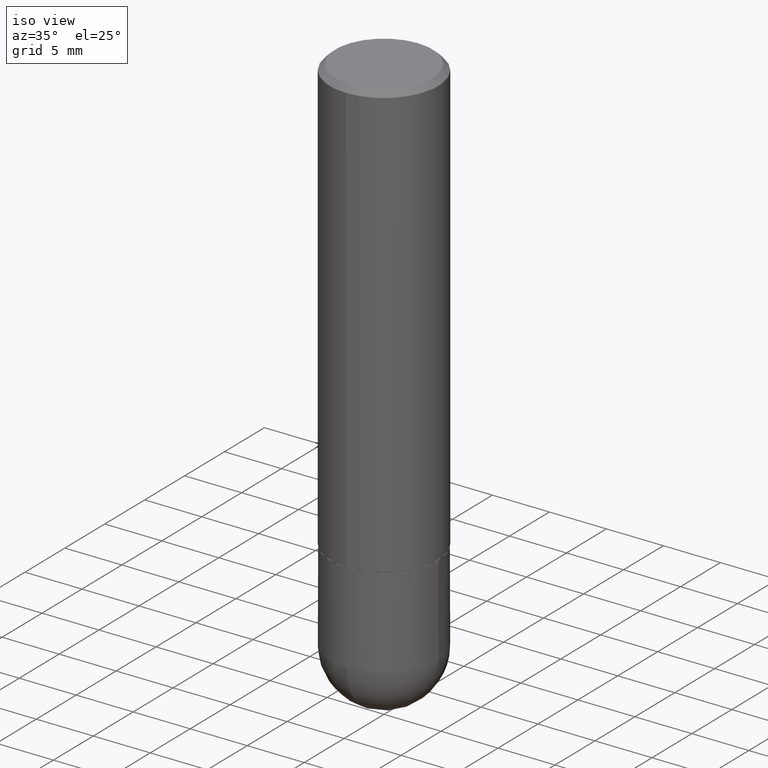
[diagram: clean part render]
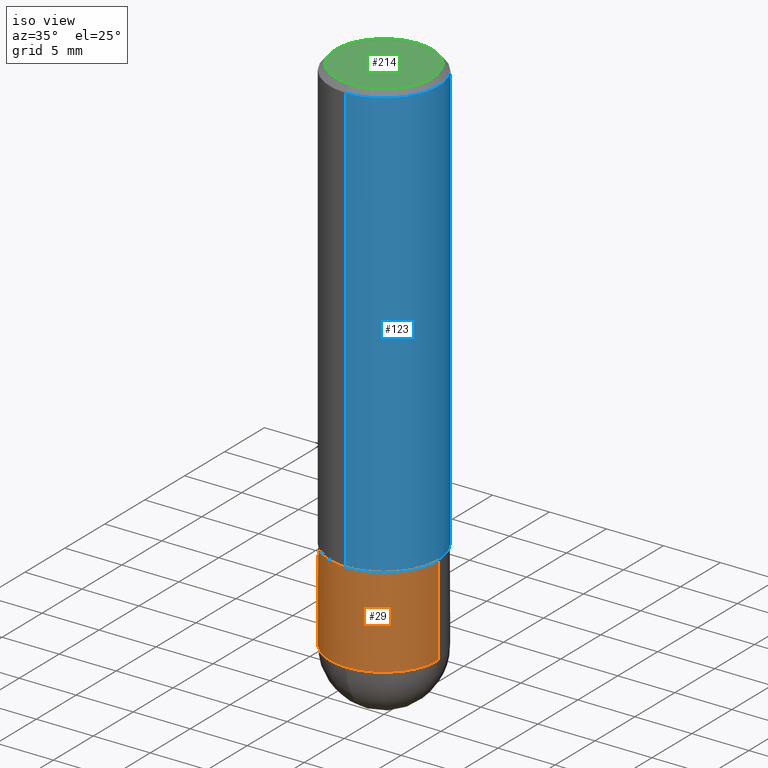
[diagram: same view with three faces highlighted in distinct colors, each labeled with its STEP entity id]
A machine part, iso view with three faces highlighted in distinct colors.
Their STEP definitions:

[orange] entity #29 — the highlighted cylindrical surface (partial cylindrical patch) has radius 4.7625 mm, axis along (-0, 0, 1).
#8 = LINE ( 'NONE', #157, #295 ) ;
#11 = EDGE_CURVE ( 'NONE', #330, #111, #65, .T. ) ;
#13 = EDGE_CURVE ( 'NONE', #411, #55, #158, .T. ) ;
#16 = DIRECTION ( 'NONE',  ( 1.000000000000000000, -6.982962677686266711E-15, 4.876176775795935793E-29 ) ) ;
#20 = ORIENTED_EDGE ( 'NONE', *, *, #13, .F. ) ;
#29 = ADVANCED_FACE ( 'NONE', ( #78 ), #174, .T. ) ;
#30 = CARTESIAN_POINT ( 'NONE',  ( 4.432412211210560082E-29, -6.328309926653201295E-15, -1.812499999999999778 ) ) ;
#35 = VECTOR ( 'NONE', #142, 39.37007874015748143 ) ;
#38 = AXIS2_PLACEMENT_3D ( 'NONE', #364, #369, #16 ) ;
#41 = EDGE_LOOP ( 'NONE', ( #297, #333, #328, #121, #20 ) ) ;
#49 = EDGE_CURVE ( 'NONE', #92, #55, #321, .T. ) ;
#55 = VERTEX_POINT ( 'NONE', #261 ) ;
#58 = CARTESIAN_POINT ( 'NONE',  ( 3.668203209277704335E-29, -5.237222008264717388E-15, -1.499999999999999778 ) ) ;
#65 = CIRCLE ( 'NONE', #245, 0.1874999999999999722 ) ;
#78 = FACE_OUTER_BOUND ( 'NONE', #41, .T. ) ;
#81 = CARTESIAN_POINT ( 'NONE',  ( 0.1874999999999999722, -7.092071469525134744E-15, -1.812499999999999778 ) ) ;
#92 = VERTEX_POINT ( 'NONE', #81 ) ;
#105 = CARTESIAN_POINT ( 'NONE',  ( -1.332267629550146039E-15, -0.1875000000000066613, -1.812499999999999334 ) ) ;
#107 = CARTESIAN_POINT ( 'NONE',  ( 4.432412211210560082E-29, -6.328309926653201295E-15, -1.812499999999999778 ) ) ;
#111 = VERTEX_POINT ( 'NONE', #105 ) ;
#121 = ORIENTED_EDGE ( 'NONE', *, *, #49, .T. ) ;
#142 = DIRECTION ( 'NONE',  ( -2.445468806185136877E-29, 3.491481338843145188E-15, 1.000000000000000000 ) ) ;
#157 = CARTESIAN_POINT ( 'NONE',  ( -0.1874999999999999722, 1.332267629550187651E-15, -9.223003294227946589E-30 ) ) ;
#158 = CIRCLE ( 'NONE', #251, 0.1875000000000000278 ) ;
#161 = DIRECTION ( 'NONE',  ( -2.445468806185136877E-29, 3.491481338843145188E-15, 1.000000000000000000 ) ) ;
#170 = DIRECTION ( 'NONE',  ( 1.000000000000000000, -6.982962677686263555E-15, 0.000000000000000000 ) ) ;
#174 = CYLINDRICAL_SURFACE ( 'NONE', #38, 0.1874999999999999722 ) ;
#177 = DIRECTION ( 'NONE',  ( -2.445468806185136597E-29, 3.491481338843145583E-15, 1.000000000000000000 ) ) ;
#187 = EDGE_CURVE ( 'NONE', #111, #92, #386, .T. ) ;
#189 = CARTESIAN_POINT ( 'NONE',  ( -0.1875000000000000278, -4.450498337908771098E-15, -1.499999999999999778 ) ) ;
#205 = DIRECTION ( 'NONE',  ( 1.000000000000000000, -6.982962677686263555E-15, 0.000000000000000000 ) ) ;
#233 = CARTESIAN_POINT ( 'NONE',  ( -0.1874999999999999722, -4.450498337908771887E-15, -1.812499999999999778 ) ) ;
#242 = DIRECTION ( 'NONE',  ( -2.445468806185136597E-29, 3.491481338843145583E-15, 1.000000000000000000 ) ) ;
#245 = AXIS2_PLACEMENT_3D ( 'NONE', #30, #242, #205 ) ;
#251 = AXIS2_PLACEMENT_3D ( 'NONE', #58, #177, #271 ) ;
#261 = CARTESIAN_POINT ( 'NONE',  ( 0.1875000000000000278, -6.546527510330893185E-15, -1.499999999999999778 ) ) ;
#271 = DIRECTION ( 'NONE',  ( 1.000000000000000000, -6.982962677686266711E-15, 0.000000000000000000 ) ) ;
#280 = EDGE_CURVE ( 'NONE', #330, #411, #8, .T. ) ;
#286 = AXIS2_PLACEMENT_3D ( 'NONE', #107, #367, #170 ) ;
#295 = VECTOR ( 'NONE', #161, 39.37007874015748143 ) ;
#297 = ORIENTED_EDGE ( 'NONE', *, *, #280, .F. ) ;
#321 = LINE ( 'NONE', #361, #35 ) ;
#328 = ORIENTED_EDGE ( 'NONE', *, *, #187, .T. ) ;
#330 = VERTEX_POINT ( 'NONE', #233 ) ;
#333 = ORIENTED_EDGE ( 'NONE', *, *, #11, .T. ) ;
#361 = CARTESIAN_POINT ( 'NONE',  ( 0.1874999999999999722, -1.309305502066174811E-15, 9.142831454617378210E-30 ) ) ;
#364 = CARTESIAN_POINT ( 'NONE',  ( 0.000000000000000000, 0.000000000000000000, 0.000000000000000000 ) ) ;
#367 = DIRECTION ( 'NONE',  ( -2.445468806185136597E-29, 3.491481338843145583E-15, 1.000000000000000000 ) ) ;
#369 = DIRECTION ( 'NONE',  ( -2.445468806185136597E-29, 3.491481338843145583E-15, 1.000000000000000000 ) ) ;
#386 = CIRCLE ( 'NONE', #286, 0.1874999999999999722 ) ;
#411 = VERTEX_POINT ( 'NONE', #189 ) ;

[blue] entity #123 — the highlighted cylindrical surface (partial cylindrical patch) has radius 4.7625 mm, axis along (-0, 0, 1).
#7 = LINE ( 'NONE', #353, #118 ) ;
#21 = AXIS2_PLACEMENT_3D ( 'NONE', #63, #340, #275 ) ;
#22 = DIRECTION ( 'NONE',  ( -6.982962677686265922E-15, -1.000000000000000000, 3.493244248574047893E-15 ) ) ;
#34 = EDGE_CURVE ( 'NONE', #236, #77, #199, .T. ) ;
#44 = DIRECTION ( 'NONE',  ( -2.444237772899634714E-29, 3.493244248574047893E-15, 1.000000000000000000 ) ) ;
#48 = CARTESIAN_POINT ( 'NONE',  ( 0.000000000000000000, 0.000000000000000000, 0.000000000000000000 ) ) ;
#52 = ORIENTED_EDGE ( 'NONE', *, *, #250, .T. ) ;
#63 = CARTESIAN_POINT ( 'NONE',  ( 3.663912421576552546E-29, -5.236373128612498345E-15, -1.499000000000000110 ) ) ;
#69 = DIRECTION ( 'NONE',  ( -2.444237772899634994E-29, 3.493244248574047893E-15, 1.000000000000000000 ) ) ;
#77 = VERTEX_POINT ( 'NONE', #332 ) ;
#83 = VERTEX_POINT ( 'NONE', #167 ) ;
#85 = DIRECTION ( 'NONE',  ( -2.444237772899634994E-29, 3.493244248574047893E-15, 1.000000000000000000 ) ) ;
#98 = CARTESIAN_POINT ( 'NONE',  ( 1.332267629550207176E-15, 0.1874999999999949207, -1.499000000000000554 ) ) ;
#110 = VECTOR ( 'NONE', #85, 39.37007874015748143 ) ;
#118 = VECTOR ( 'NONE', #69, 39.37007874015748143 ) ;
#123 = ADVANCED_FACE ( 'NONE', ( #259 ), #296, .T. ) ;
#135 = CARTESIAN_POINT ( 'NONE',  ( -1.309305502066175205E-15, -0.1875000000000000555, 6.549832966076341771E-16 ) ) ;
#141 = ORIENTED_EDGE ( 'NONE', *, *, #34, .F. ) ;
#167 = CARTESIAN_POINT ( 'NONE',  ( 1.309305502066175205E-15, 0.1874999999999999167, -0.02000000000000069084 ) ) ;
#190 = CIRCLE ( 'NONE', #198, 0.1874999999999999722 ) ;
#194 = EDGE_CURVE ( 'NONE', #77, #83, #190, .T. ) ;
#198 = AXIS2_PLACEMENT_3D ( 'NONE', #329, #44, #201 ) ;
#199 = LINE ( 'NONE', #135, #110 ) ;
#201 = DIRECTION ( 'NONE',  ( -6.982962677686266711E-15, -1.000000000000000000, 3.483106191921935949E-15 ) ) ;
#224 = DIRECTION ( 'NONE',  ( -2.444237772899634714E-29, 3.493244248574047893E-15, 1.000000000000000000 ) ) ;
#227 = CIRCLE ( 'NONE', #21, 0.1875000000000001388 ) ;
#230 = ORIENTED_EDGE ( 'NONE', *, *, #194, .F. ) ;
#236 = VERTEX_POINT ( 'NONE', #403 ) ;
#250 = EDGE_CURVE ( 'NONE', #236, #273, #227, .T. ) ;
#259 = FACE_OUTER_BOUND ( 'NONE', #368, .T. ) ;
#273 = VERTEX_POINT ( 'NONE', #98 ) ;
#275 = DIRECTION ( 'NONE',  ( -6.982962677686266711E-15, -1.000000000000000000, 2.913971193241878794E-15 ) ) ;
#284 = EDGE_CURVE ( 'NONE', #273, #83, #7, .T. ) ;
#293 = ORIENTED_EDGE ( 'NONE', *, *, #284, .T. ) ;
#296 = CYLINDRICAL_SURFACE ( 'NONE', #317, 0.1875000000000000555 ) ;
#317 = AXIS2_PLACEMENT_3D ( 'NONE', #48, #224, #22 ) ;
#329 = CARTESIAN_POINT ( 'NONE',  ( 4.888475545799278045E-31, -6.986488497148108654E-17, -0.02000000000000003858 ) ) ;
#332 = CARTESIAN_POINT ( 'NONE',  ( -1.286343374582161379E-15, -0.1875000000000000555, -0.01999999999999938632 ) ) ;
#340 = DIRECTION ( 'NONE',  ( -2.444237772899634714E-29, 3.493244248574047893E-15, 1.000000000000000000 ) ) ;
#353 = CARTESIAN_POINT ( 'NONE',  ( 1.332267629550188046E-15, 0.1875000000000000555, -6.549832966076341771E-16 ) ) ;
#368 = EDGE_LOOP ( 'NONE', ( #52, #293, #230, #141 ) ) ;
#403 = CARTESIAN_POINT ( 'NONE',  ( -1.309305502066139312E-15, -0.1875000000000053846, -1.498999999999999444 ) ) ;

[green] entity #214 — the highlighted planar face has unit normal (0, -0, -1).
#4 = AXIS2_PLACEMENT_3D ( 'NONE', #292, #264, #400 ) ;
#25 = DIRECTION ( 'NONE',  ( -6.982962677686266711E-15, -1.000000000000000000, 3.493244248574047893E-15 ) ) ;
#42 = DIRECTION ( 'NONE',  ( -2.444237772899634714E-29, 3.493244248574047893E-15, 1.000000000000000000 ) ) ;
#61 = ORIENTED_EDGE ( 'NONE', *, *, #319, .T. ) ;
#87 = EDGE_CURVE ( 'NONE', #255, #263, #143, .T. ) ;
#90 = ORIENTED_EDGE ( 'NONE', *, *, #87, .T. ) ;
#143 = CIRCLE ( 'NONE', #365, 0.1674999999999999545 ) ;
#156 = CARTESIAN_POINT ( 'NONE',  ( 1.239475875289312499E-15, 0.1674999999999999545, -5.592120493156243082E-16 ) ) ;
#171 = PLANE ( 'NONE',  #4 ) ;
#175 = AXIS2_PLACEMENT_3D ( 'NONE', #316, #42, #25 ) ;
#195 = DIRECTION ( 'NONE',  ( -6.982962677686266711E-15, -1.000000000000000000, 3.493244248574047893E-15 ) ) ;
#200 = EDGE_LOOP ( 'NONE', ( #90, #61 ) ) ;
#214 = ADVANCED_FACE ( 'NONE', ( #290 ), #171, .F. ) ;
#232 = DIRECTION ( 'NONE',  ( -2.444237772899634714E-29, 3.493244248574047893E-15, 1.000000000000000000 ) ) ;
#235 = CARTESIAN_POINT ( 'NONE',  ( -1.217738394604446442E-15, -0.1674999999999999545, 6.110247739566814046E-16 ) ) ;
#255 = VERTEX_POINT ( 'NONE', #156 ) ;
#263 = VERTEX_POINT ( 'NONE', #235 ) ;
#264 = DIRECTION ( 'NONE',  ( 2.444237772899634153E-29, -3.493244248574047893E-15, -1.000000000000000000 ) ) ;
#290 = FACE_OUTER_BOUND ( 'NONE', #200, .T. ) ;
#292 = CARTESIAN_POINT ( 'NONE',  ( 1.169646248512449398E-15, 0.1674999999999999545, -5.721652304758885823E-16 ) ) ;
#316 = CARTESIAN_POINT ( 'NONE',  ( -6.332130934225978108E-46, 9.049725117766187729E-32, 2.590636232052857901E-17 ) ) ;
#319 = EDGE_CURVE ( 'NONE', #263, #255, #358, .T. ) ;
#358 = CIRCLE ( 'NONE', #175, 0.1674999999999999545 ) ;
#360 = CARTESIAN_POINT ( 'NONE',  ( -6.332130934225978108E-46, 9.049725117766187729E-32, 2.590636232052857901E-17 ) ) ;
#365 = AXIS2_PLACEMENT_3D ( 'NONE', #360, #232, #195 ) ;
#400 = DIRECTION ( 'NONE',  ( 6.982962677686265922E-15, 1.000000000000000000, -3.493244248574047893E-15 ) ) ;